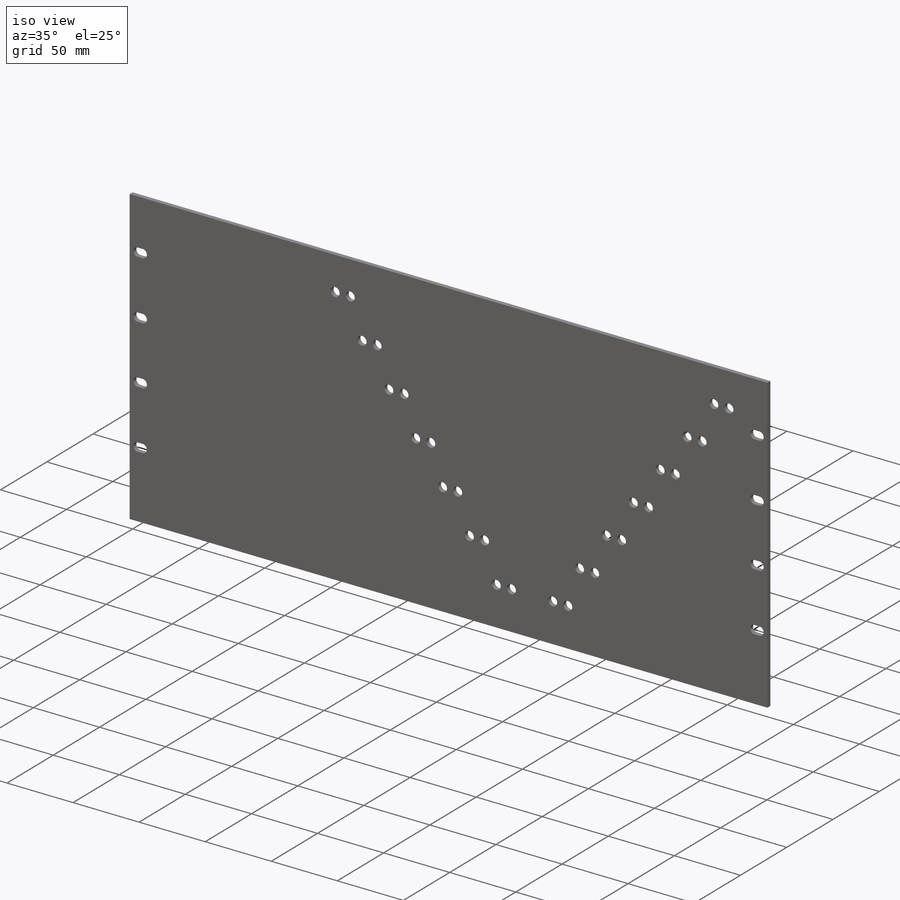
[diagram: iso view]
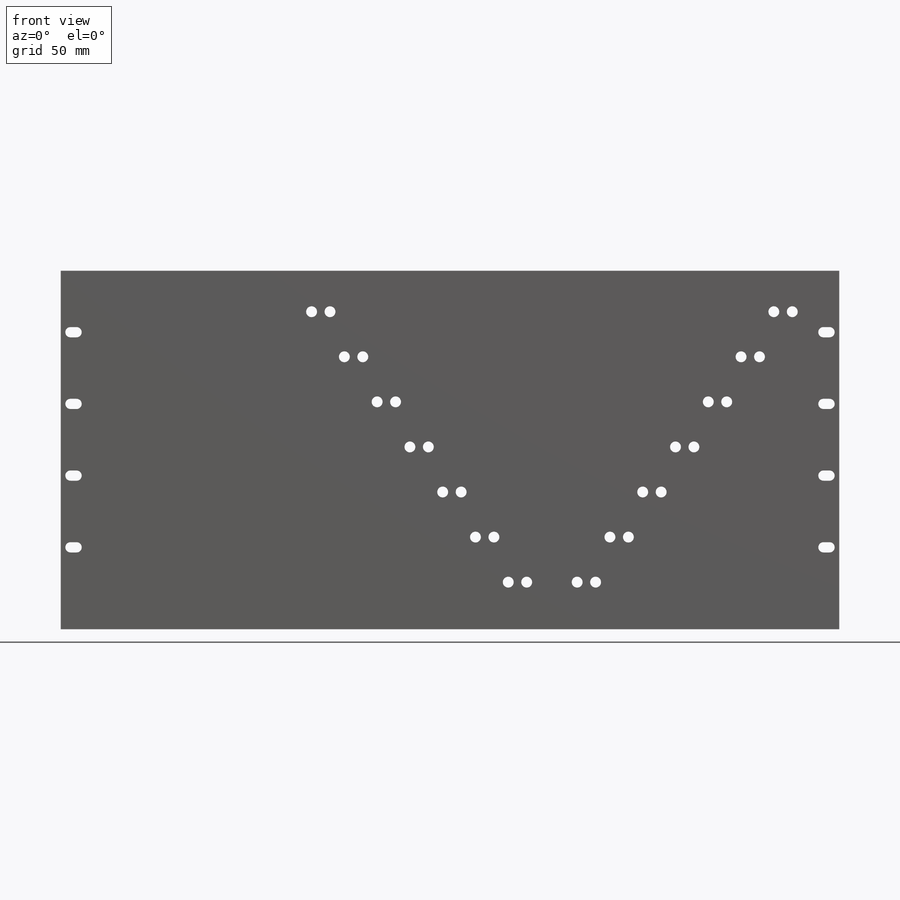
[diagram: front view]
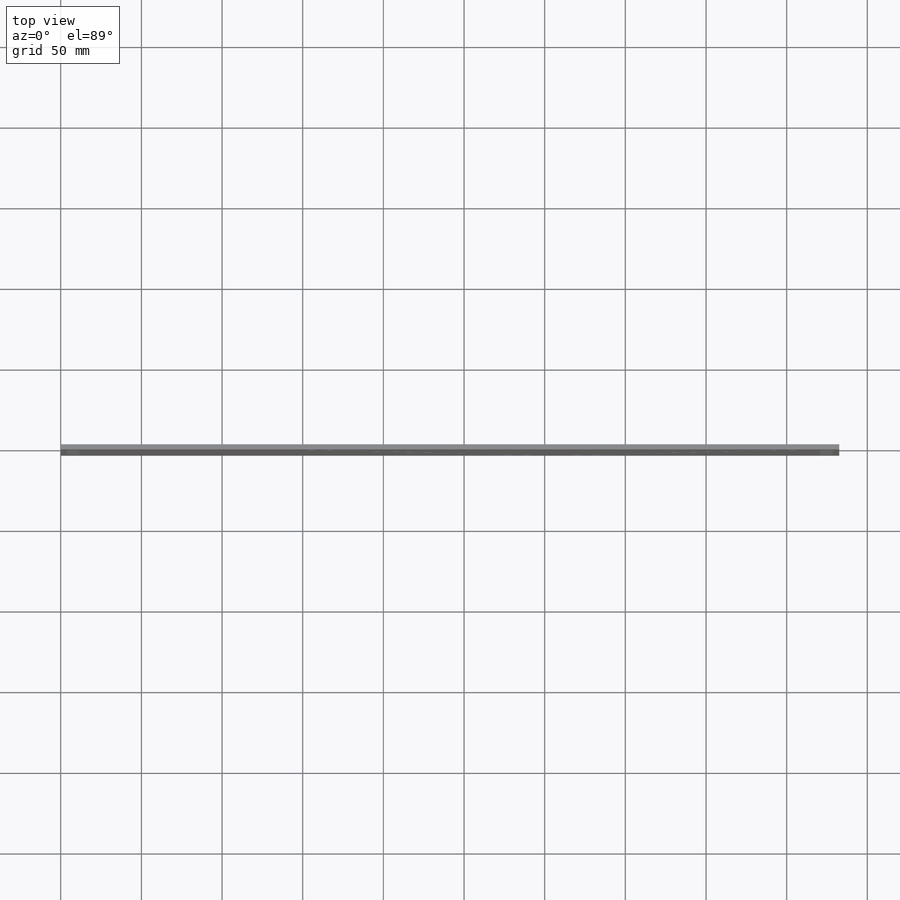
[diagram: top view]
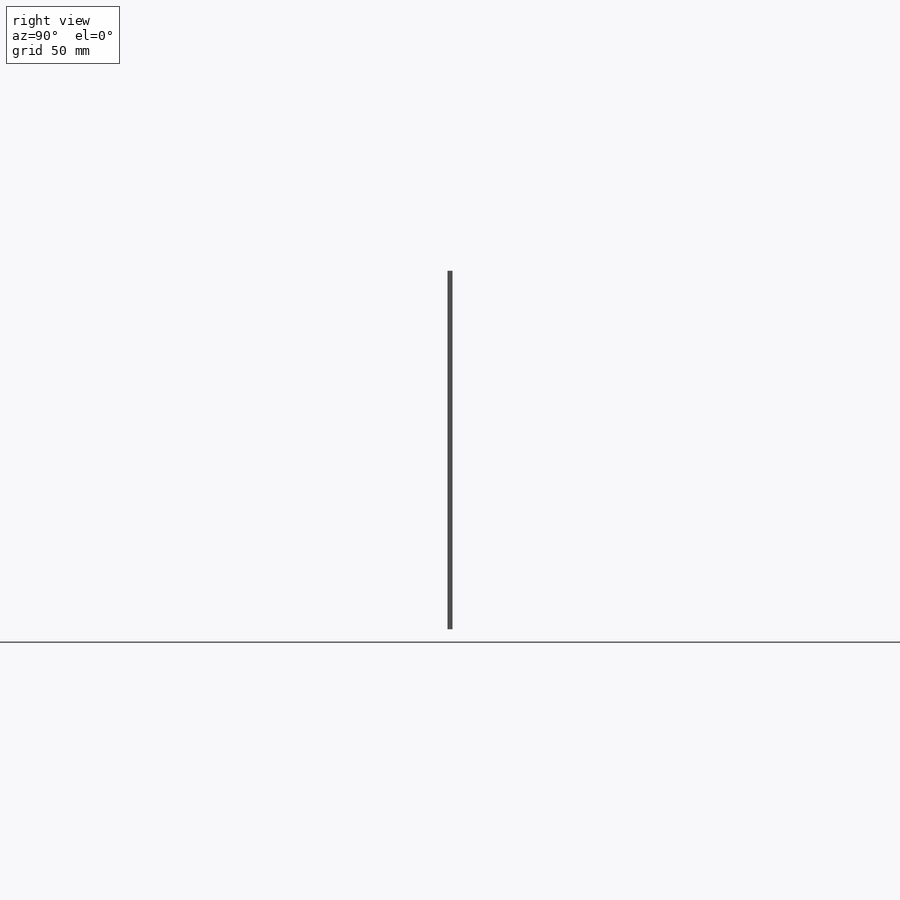
[diagram: right view]
SOLIDWORKS PART (.sldprt)
format: sldprt  version: not decoded by parser v0  size: 276,480 bytes
history: native  units: mm
features: sketch x5, hole x2, material x1, extrude x1 (+13 scaffold rows collapsed)
feature tree (22):
  scaffold x13  (default folders/planes/origin — collapsed)
  material  "6061 Alloy"
  sketch  "Sketch1"  dims[D1=482.6mm D2=222.25mm]
  extrude  "Boss-Extrude1"  Depth=3.175mm
  hole  "1/4 Clearance Hole1"  Diameter=6.7564mm Depth=19.05mm
  sketch  "Sketch2"
  sketch  "Sketch3"  dims[Hole Dia.=6.7564mm Hole Depth=19.05mm Drill Angle=118.0deg]
  hole  "Tap Drill Slot for #10-24 Tap1"  Diameter=6.35mm Depth=3.302mm
  sketch  "Sketch5"  dims[D1=233.3752mm D2=10.16mm D3=38.1mm D4=44.45mm D5=44.45mm D6=44.45mm]
  sketch  "Sketch4"  dims[hole-wizard template sketch: 47 standard entries collapsed; hole parameters kept: c15.Hole Depth=3.302mm c15.D3=~14.816244mm c15.Drill Angle=118.0deg]
decode coverage: 7 of 8 modeling features carry decoded parameters
note: ~ marks probable driven/reference dimensions
note: suppression state not decoded; provenance and decode notes live in map.json
